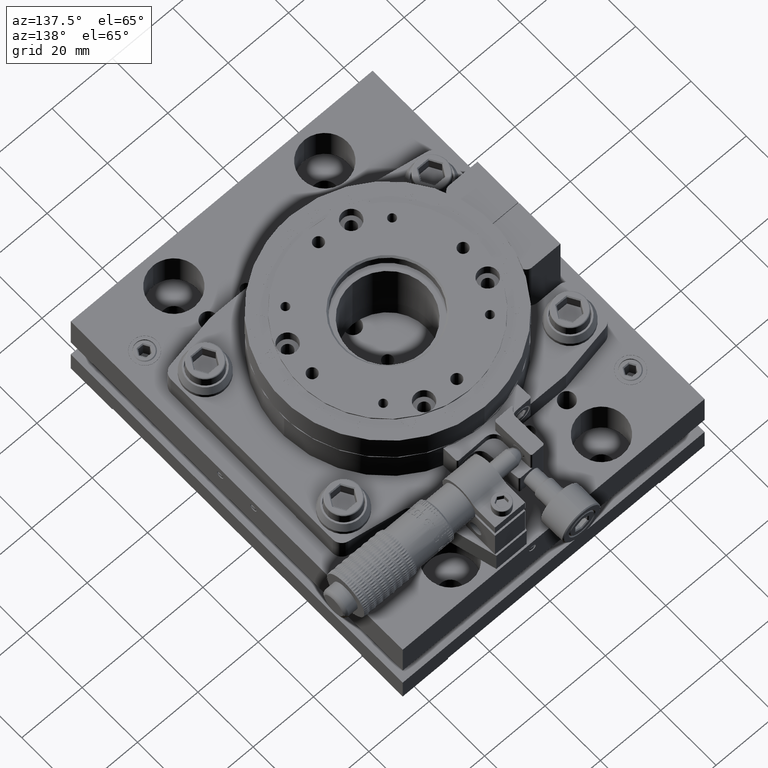
[diagram: clean part render]
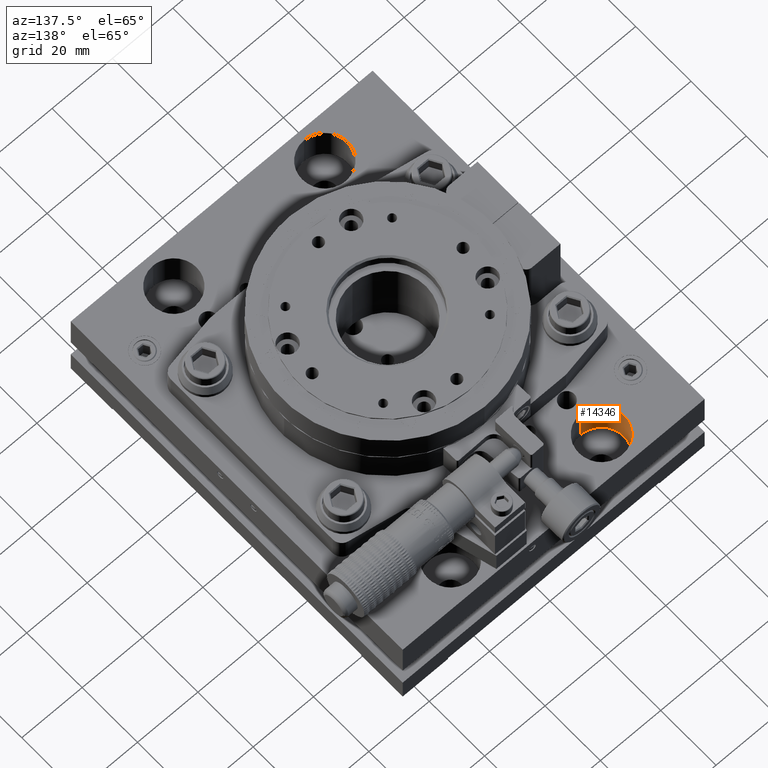
[diagram: same view with one face highlighted and labeled with its STEP entity id]
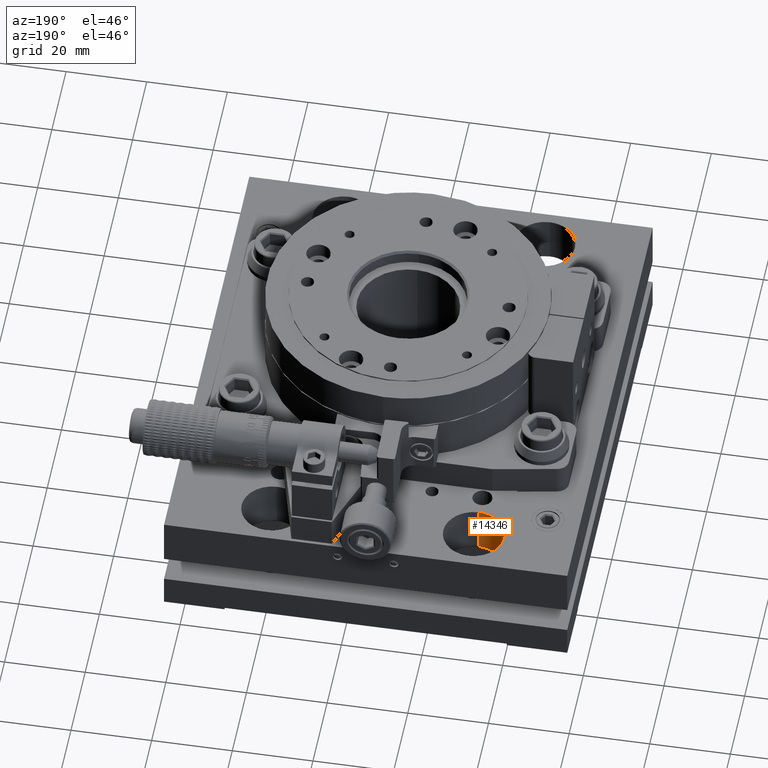
[diagram: same view with one face highlighted and labeled with its STEP entity id]
A machine part, auxiliary view. The second image highlights one B-rep face of the part: STEP entity #14346.
A second angle (auxiliary view) of the same face is appended — the face is thin or edge-on in the first view.
In plain terms, the highlighted cylindrical surface (edge-blend (fillet) strip) has radius 7.5 mm, axis along (0, 0, 1).
Its self-contained STEP definition (entity closure, byte-faithful):
#14346=ADVANCED_FACE('',(#20371),#110877,.F.);
#20371=FACE_OUTER_BOUND('',#26945,.T.);
#26945=EDGE_LOOP('',(#60037,#60038,#60039,#60040));
#60037=ORIENTED_EDGE('',*,*,#77629,.F.);
#60038=ORIENTED_EDGE('',*,*,#77632,.T.);
#60039=ORIENTED_EDGE('',*,*,#77630,.T.);
#60040=ORIENTED_EDGE('',*,*,#77780,.F.);
#77629=EDGE_CURVE('',#105523,#105584,#94877,.T.);
#77630=EDGE_CURVE('',#105514,#105515,#94878,.T.);
#77632=EDGE_CURVE('',#105523,#105514,#92718,.T.);
#77780=EDGE_CURVE('',#105584,#105515,#92802,.T.);
#92718=B_SPLINE_CURVE_WITH_KNOTS('',1,(#192717,#192718),.UNSPECIFIED.,.F.,
 .F.,(2,2),(1.32,13.32),.UNSPECIFIED.);
#92802=B_SPLINE_CURVE_WITH_KNOTS('',1,(#193683,#193684),.UNSPECIFIED.,.F.,
 .F.,(2,2),(1.32,13.32),.UNSPECIFIED.);
#94877=(
BOUNDED_CURVE()
B_SPLINE_CURVE(2,(#192702,#192703,#192704,#192705,#192706),
 .UNSPECIFIED.,.F.,.F.)
B_SPLINE_CURVE_WITH_KNOTS((3,2,3),(-47.1238898038469,-35.3429173528852,
-23.5619449019234),.UNSPECIFIED.)
CURVE()
GEOMETRIC_REPRESENTATION_ITEM()
RATIONAL_B_SPLINE_CURVE((1.,0.707106781186548,1.,0.707106781186548,1.))
REPRESENTATION_ITEM('')
);
#94878=(
BOUNDED_CURVE()
B_SPLINE_CURVE(2,(#192707,#192708,#192709,#192710,#192711),
 .UNSPECIFIED.,.F.,.F.)
B_SPLINE_CURVE_WITH_KNOTS((3,2,3),(0.,11.7809724509617,23.5619449019234),
 .UNSPECIFIED.)
CURVE()
GEOMETRIC_REPRESENTATION_ITEM()
RATIONAL_B_SPLINE_CURVE((1.,0.707106781186548,1.,0.707106781186548,1.))
REPRESENTATION_ITEM('')
);
#105514=VERTEX_POINT('',#191731);
#105515=VERTEX_POINT('',#191732);
#105523=VERTEX_POINT('',#191740);
#105584=VERTEX_POINT('',#191801);
#110877=CYLINDRICAL_SURFACE('',#116180,7.50000000000001);
#116180=AXIS2_PLACEMENT_3D('',#191502,#121328,$);
#121328=DIRECTION('',(0.,0.,1.));
#191502=CARTESIAN_POINT('',(-30.2498945992674,45.5922843496782,21.0001011709705));
#191731=CARTESIAN_POINT('',(-30.2498945992674,53.0922843496783,27.0001011709705));
#191732=CARTESIAN_POINT('',(-30.2498945992674,38.0922843496783,27.0001011709705));
#191740=CARTESIAN_POINT('',(-30.2498945992674,53.0922843496783,15.0001011709705));
#191801=CARTESIAN_POINT('',(-30.2498945992674,38.0922843496783,15.0001011709705));
#192702=CARTESIAN_POINT('',(-30.2498945992674,53.0922843496783,15.0001011709705));
#192703=CARTESIAN_POINT('',(-37.7498945992674,53.0922843496782,15.0001011709705));
#192704=CARTESIAN_POINT('',(-37.7498945992674,45.5922843496783,15.0001011709705));
#192705=CARTESIAN_POINT('',(-37.7498945992674,38.0922843496783,15.0001011709705));
#192706=CARTESIAN_POINT('',(-30.2498945992674,38.0922843496783,15.0001011709705));
#192707=CARTESIAN_POINT('',(-30.2498945992674,53.0922843496783,27.0001011709705));
#192708=CARTESIAN_POINT('',(-37.7498945992674,53.0922843496782,27.0001011709705));
#192709=CARTESIAN_POINT('',(-37.7498945992674,45.5922843496783,27.0001011709705));
#192710=CARTESIAN_POINT('',(-37.7498945992674,38.0922843496783,27.0001011709705));
#192711=CARTESIAN_POINT('',(-30.2498945992674,38.0922843496783,27.0001011709705));
#192717=CARTESIAN_POINT('',(-30.2498945992674,53.0922843496783,15.0001011709705));
#192718=CARTESIAN_POINT('',(-30.2498945992674,53.0922843496783,27.0001011709705));
#193683=CARTESIAN_POINT('',(-30.2498945992674,38.0922843496783,15.0001011709705));
#193684=CARTESIAN_POINT('',(-30.2498945992674,38.0922843496783,27.0001011709705));